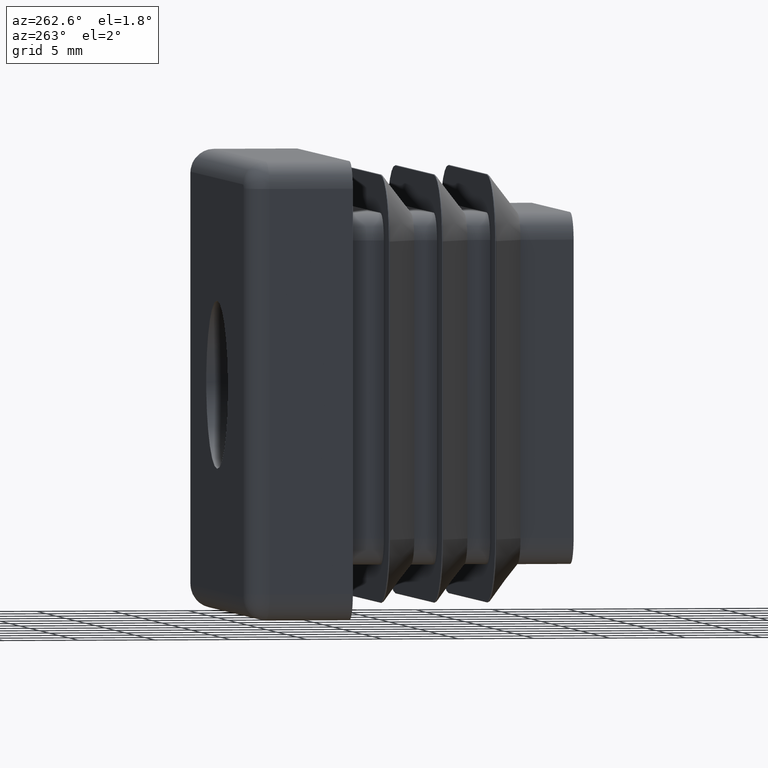
[diagram: clean part render]
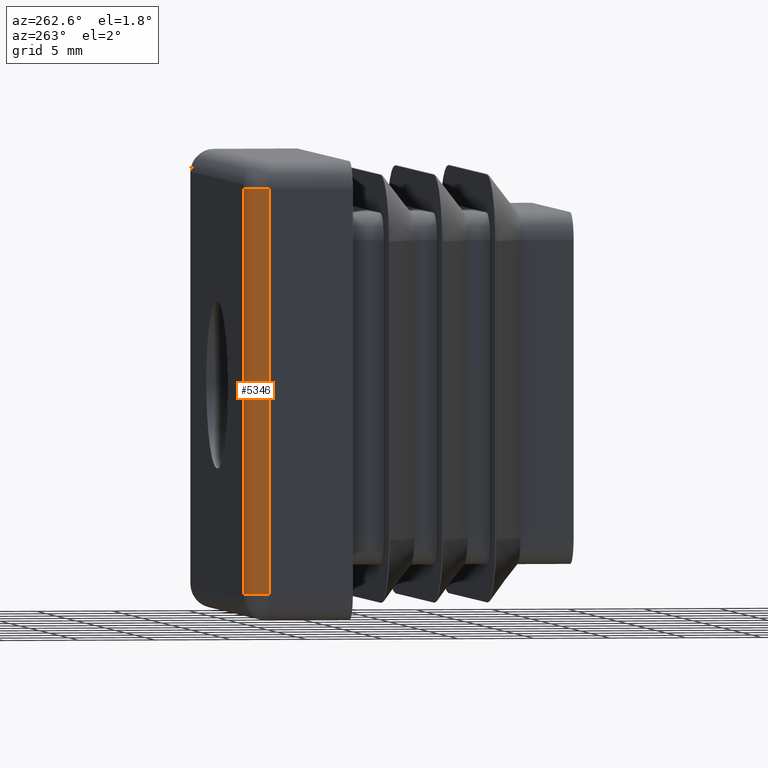
[diagram: same view with one face highlighted and labeled with its STEP entity id]
A machine part, auxiliary view. The second image highlights one B-rep face of the part: STEP entity #5346.
In plain terms, the highlighted cylindrical surface (edge-blend (fillet) strip) has radius 1.5 mm, axis along (-0, 0, -1).
Its self-contained STEP definition (entity closure, byte-faithful):
#186 = DIRECTION ( 'NONE',  ( -1.156482317317871725E-15, 0.000000000000000000, 1.000000000000000000 ) ) ;
#262 = CARTESIAN_POINT ( 'NONE',  ( -13.49999999999999467, 5.500000000000000000, 13.24999999999999822 ) ) ;
#274 = CIRCLE ( 'NONE', #16640, 1.499999999999999556 ) ;
#457 = CARTESIAN_POINT ( 'NONE',  ( -13.49999999999999467, 7.000000000000000000, 13.24999999999999645 ) ) ;
#918 = EDGE_CURVE ( 'NONE', #8858, #14590, #2888, .T. ) ;
#1973 = DIRECTION ( 'NONE',  ( 1.000000000000000000, 0.000000000000000000, 1.156482317317871725E-15 ) ) ;
#2559 = CARTESIAN_POINT ( 'NONE',  ( -15.00000000000000178, 5.500000000000000000, -13.25000000000000178 ) ) ;
#2888 = LINE ( 'NONE', #457, #3147 ) ;
#3147 = VECTOR ( 'NONE', #12189, 1000.000000000000000 ) ;
#3231 = EDGE_LOOP ( 'NONE', ( #7552, #7712, #17440, #15739 ) ) ;
#3619 = CYLINDRICAL_SURFACE ( 'NONE', #13104, 1.499999999999999556 ) ;
#3672 = DIRECTION ( 'NONE',  ( 0.000000000000000000, -0.000000000000000000, 1.000000000000000000 ) ) ;
#4614 = CIRCLE ( 'NONE', #21802, 1.499999999999999556 ) ;
#5346 = ADVANCED_FACE ( 'NONE', ( #8948 ), #3619, .T. ) ;
#5574 = LINE ( 'NONE', #15514, #13557 ) ;
#7552 = ORIENTED_EDGE ( 'NONE', *, *, #18521, .T. ) ;
#7608 = DIRECTION ( 'NONE',  ( 1.000000000000000000, 0.000000000000000000, 0.000000000000000000 ) ) ;
#7712 = ORIENTED_EDGE ( 'NONE', *, *, #19320, .F. ) ;
#8209 = CARTESIAN_POINT ( 'NONE',  ( -13.50000000000000178, 7.000000000000000000, -13.25000000000000178 ) ) ;
#8858 = VERTEX_POINT ( 'NONE', #8209 ) ;
#8948 = FACE_OUTER_BOUND ( 'NONE', #3231, .T. ) ;
#8961 = EDGE_CURVE ( 'NONE', #14590, #9646, #4614, .T. ) ;
#9646 = VERTEX_POINT ( 'NONE', #14502 ) ;
#12027 = CARTESIAN_POINT ( 'NONE',  ( -13.49999999999999467, 7.000000000000000000, 13.24999999999999822 ) ) ;
#12189 = DIRECTION ( 'NONE',  ( 2.312964634635742957E-16, -0.000000000000000000, 1.000000000000000000 ) ) ;
#13104 = AXIS2_PLACEMENT_3D ( 'NONE', #19304, #14342, #19606 ) ;
#13557 = VECTOR ( 'NONE', #15365, 1000.000000000000000 ) ;
#14342 = DIRECTION ( 'NONE',  ( -2.312964634635742957E-16, 0.000000000000000000, -1.000000000000000000 ) ) ;
#14502 = CARTESIAN_POINT ( 'NONE',  ( -14.99999999999999467, 5.500000000000000000, 13.24999999999999645 ) ) ;
#14590 = VERTEX_POINT ( 'NONE', #12027 ) ;
#15365 = DIRECTION ( 'NONE',  ( -2.312964634635742957E-16, -0.000000000000000000, -1.000000000000000000 ) ) ;
#15514 = CARTESIAN_POINT ( 'NONE',  ( -15.00000000000000178, 5.500000000000000000, -13.25000000000000178 ) ) ;
#15739 = ORIENTED_EDGE ( 'NONE', *, *, #918, .F. ) ;
#16640 = AXIS2_PLACEMENT_3D ( 'NONE', #20604, #3672, #7608 ) ;
#17440 = ORIENTED_EDGE ( 'NONE', *, *, #8961, .F. ) ;
#18521 = EDGE_CURVE ( 'NONE', #8858, #21482, #274, .T. ) ;
#19304 = CARTESIAN_POINT ( 'NONE',  ( -13.49999999999999822, 5.500000000000000000, 3.122502256758252376E-15 ) ) ;
#19320 = EDGE_CURVE ( 'NONE', #9646, #21482, #5574, .T. ) ;
#19606 = DIRECTION ( 'NONE',  ( -1.000000000000000000, 0.000000000000000000, 2.312964634635742957E-16 ) ) ;
#20604 = CARTESIAN_POINT ( 'NONE',  ( -13.50000000000000178, 5.500000000000000000, -13.25000000000000178 ) ) ;
#21482 = VERTEX_POINT ( 'NONE', #2559 ) ;
#21802 = AXIS2_PLACEMENT_3D ( 'NONE', #262, #186, #1973 ) ;